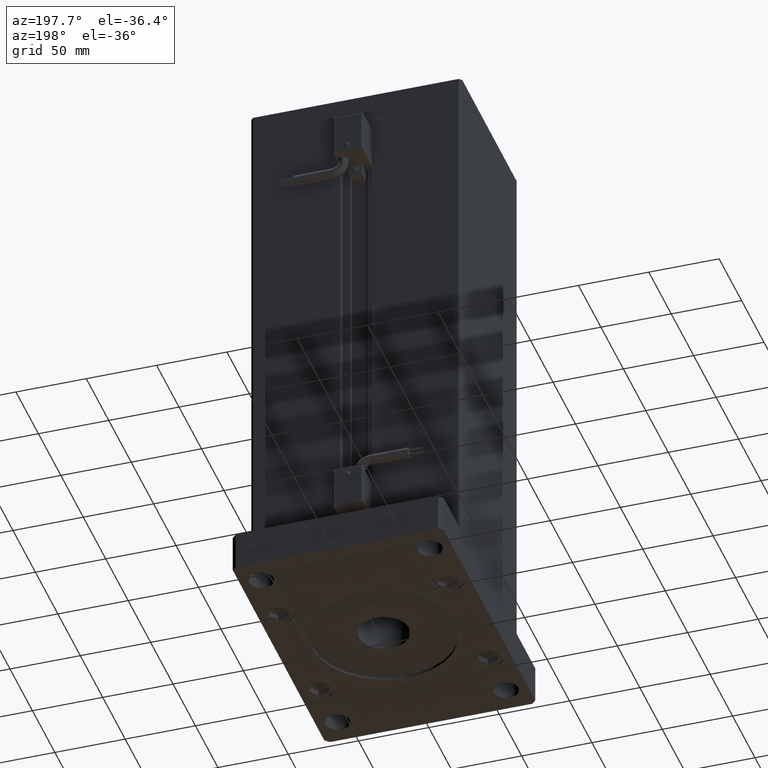
[diagram: clean part render]
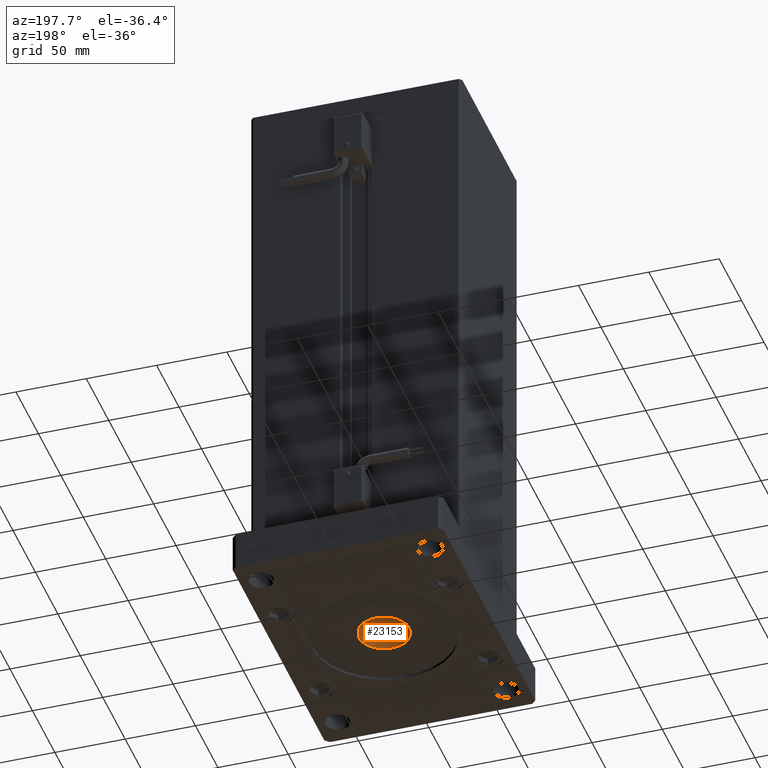
[diagram: same view with one face highlighted and labeled with its STEP entity id]
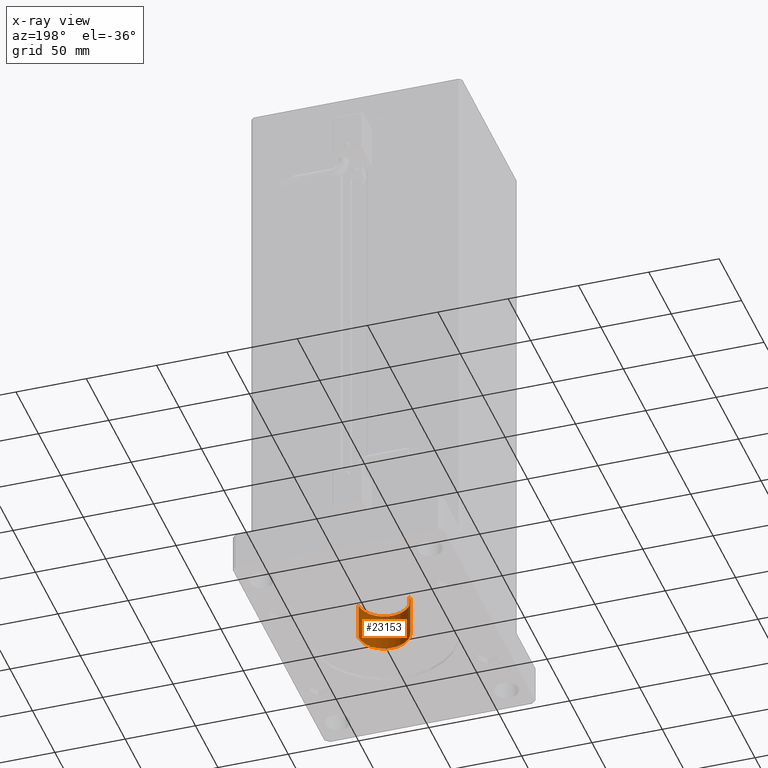
[diagram: x-ray of the same camera — body ghosted, the highlighted face saturated]
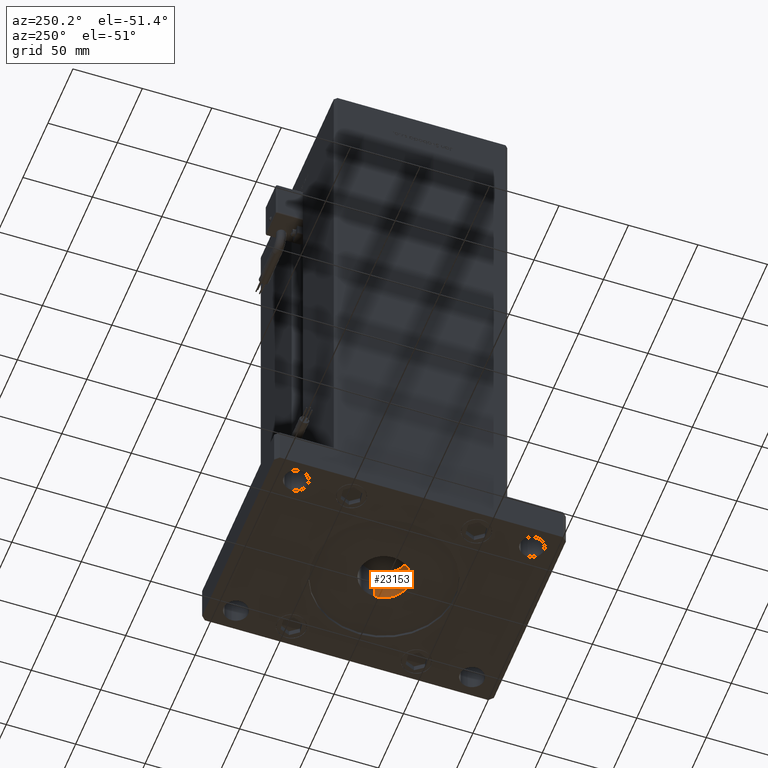
[diagram: same view with one face highlighted and labeled with its STEP entity id]
A machine part, auxiliary view. The second image highlights one B-rep face of the part: STEP entity #23153.
The next image is the same camera in x-ray: the body ghosted, the highlighted face saturated — about 0% of this face is hidden behind the body in this view.
A second angle (auxiliary view) of the same face is appended — the face is thin or edge-on in the first view.
In plain terms, the highlighted cylindrical surface (edge-blend (fillet) strip) has radius 18 mm, axis along (0, 0, 1).
Its self-contained STEP definition (entity closure, byte-faithful):
#988 = CYLINDRICAL_SURFACE ( 'NONE', #22996, 18.00000000000000000 ) ;
#3066 = ORIENTED_EDGE ( 'NONE', *, *, #11108, .T. ) ;
#3252 = VERTEX_POINT ( 'NONE', #15932 ) ;
#3727 = AXIS2_PLACEMENT_3D ( 'NONE', #52355, #13097, #56383 ) ;
#5329 = CARTESIAN_POINT ( 'NONE',  ( 18.00000000000000000, 0.000000000000000000, 0.000000000000000000 ) ) ;
#10448 = DIRECTION ( 'NONE',  ( 1.000000000000000000, 0.000000000000000000, 0.000000000000000000 ) ) ;
#11108 = EDGE_CURVE ( 'NONE', #16843, #14579, #20231, .T. ) ;
#11117 = AXIS2_PLACEMENT_3D ( 'NONE', #16750, #29613, #47117 ) ;
#13097 = DIRECTION ( 'NONE',  ( -0.000000000000000000, -0.000000000000000000, 1.000000000000000000 ) ) ;
#14579 = VERTEX_POINT ( 'NONE', #31503 ) ;
#15932 = CARTESIAN_POINT ( 'NONE',  ( -18.00000000000000000, 2.204364238465235428E-15, 2.000000000000000000 ) ) ;
#16750 = CARTESIAN_POINT ( 'NONE',  ( 0.000000000000000000, 0.000000000000000000, 28.99999999999999645 ) ) ;
#16843 = VERTEX_POINT ( 'NONE', #46933 ) ;
#18367 = CIRCLE ( 'NONE', #3727, 18.00000000000000000 ) ;
#19203 = VECTOR ( 'NONE', #36262, 1000.000000000000000 ) ;
#20231 = CIRCLE ( 'NONE', #11117, 18.00000000000000000 ) ;
#21754 = EDGE_CURVE ( 'NONE', #3252, #40498, #18367, .T. ) ;
#22996 = AXIS2_PLACEMENT_3D ( 'NONE', #49133, #49987, #10448 ) ;
#23153 = ADVANCED_FACE ( 'NONE', ( #49716 ), #988, .F. ) ;
#25905 = DIRECTION ( 'NONE',  ( -0.000000000000000000, -0.000000000000000000, 1.000000000000000000 ) ) ;
#29613 = DIRECTION ( 'NONE',  ( 0.000000000000000000, 0.000000000000000000, 1.000000000000000000 ) ) ;
#30187 = LINE ( 'NONE', #33157, #31976 ) ;
#30907 = ORIENTED_EDGE ( 'NONE', *, *, #55674, .T. ) ;
#31503 = CARTESIAN_POINT ( 'NONE',  ( 18.00000000000000000, 0.000000000000000000, 28.99999999999999645 ) ) ;
#31976 = VECTOR ( 'NONE', #25905, 1000.000000000000000 ) ;
#32773 = ORIENTED_EDGE ( 'NONE', *, *, #21754, .F. ) ;
#33157 = CARTESIAN_POINT ( 'NONE',  ( -18.00000000000000000, 2.204364238465235428E-15, 0.000000000000000000 ) ) ;
#36262 = DIRECTION ( 'NONE',  ( -0.000000000000000000, -0.000000000000000000, 1.000000000000000000 ) ) ;
#40498 = VERTEX_POINT ( 'NONE', #46836 ) ;
#46836 = CARTESIAN_POINT ( 'NONE',  ( 18.00000000000000000, 0.000000000000000000, 2.000000000000000000 ) ) ;
#46933 = CARTESIAN_POINT ( 'NONE',  ( -18.00000000000000000, 2.204364238465235428E-15, 28.99999999999999645 ) ) ;
#47117 = DIRECTION ( 'NONE',  ( 1.000000000000000000, 0.000000000000000000, 0.000000000000000000 ) ) ;
#49133 = CARTESIAN_POINT ( 'NONE',  ( 0.000000000000000000, 0.000000000000000000, 0.000000000000000000 ) ) ;
#49716 = FACE_OUTER_BOUND ( 'NONE', #55292, .T. ) ;
#49987 = DIRECTION ( 'NONE',  ( -0.000000000000000000, -0.000000000000000000, 1.000000000000000000 ) ) ;
#52355 = CARTESIAN_POINT ( 'NONE',  ( 0.000000000000000000, 0.000000000000000000, 2.000000000000000000 ) ) ;
#52358 = ORIENTED_EDGE ( 'NONE', *, *, #56651, .F. ) ;
#54347 = LINE ( 'NONE', #5329, #19203 ) ;
#55292 = EDGE_LOOP ( 'NONE', ( #32773, #30907, #3066, #52358 ) ) ;
#55674 = EDGE_CURVE ( 'NONE', #3252, #16843, #30187, .T. ) ;
#56383 = DIRECTION ( 'NONE',  ( -1.000000000000000000, 0.000000000000000000, 0.000000000000000000 ) ) ;
#56651 = EDGE_CURVE ( 'NONE', #40498, #14579, #54347, .T. ) ;